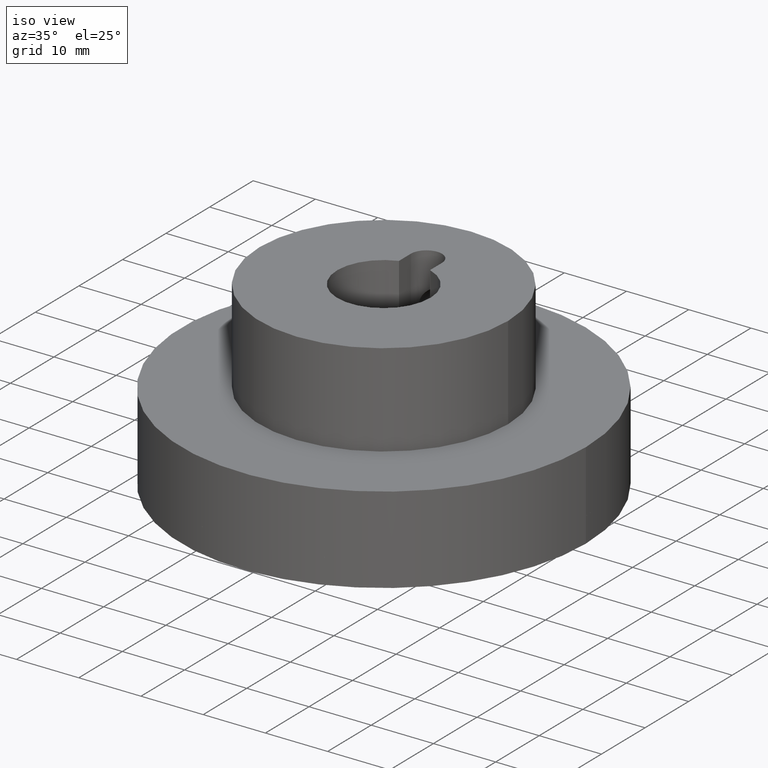
[diagram: clean part render]
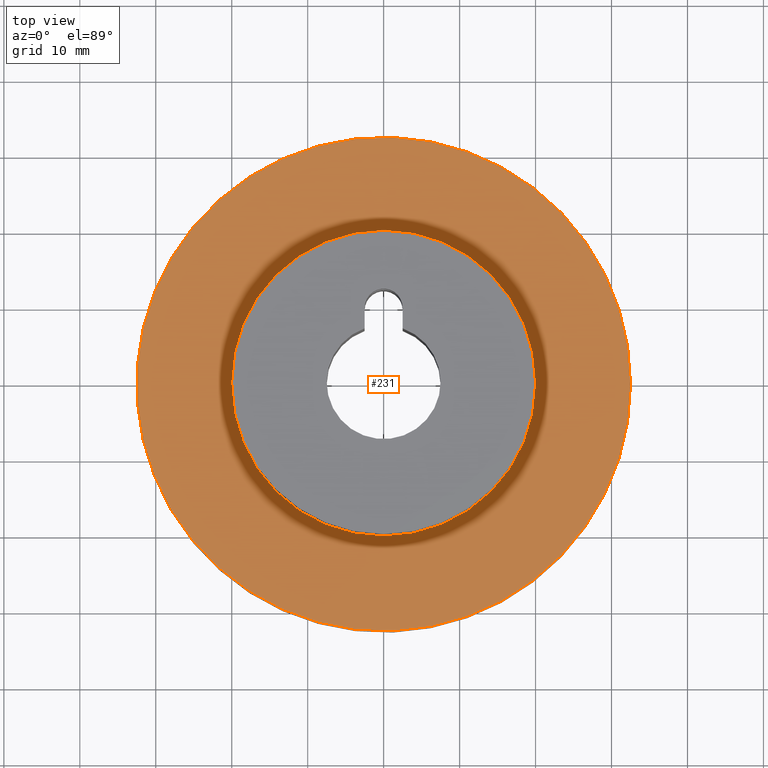
[diagram: tour spotlight — one face highlighted and labeled with its STEP entity id]
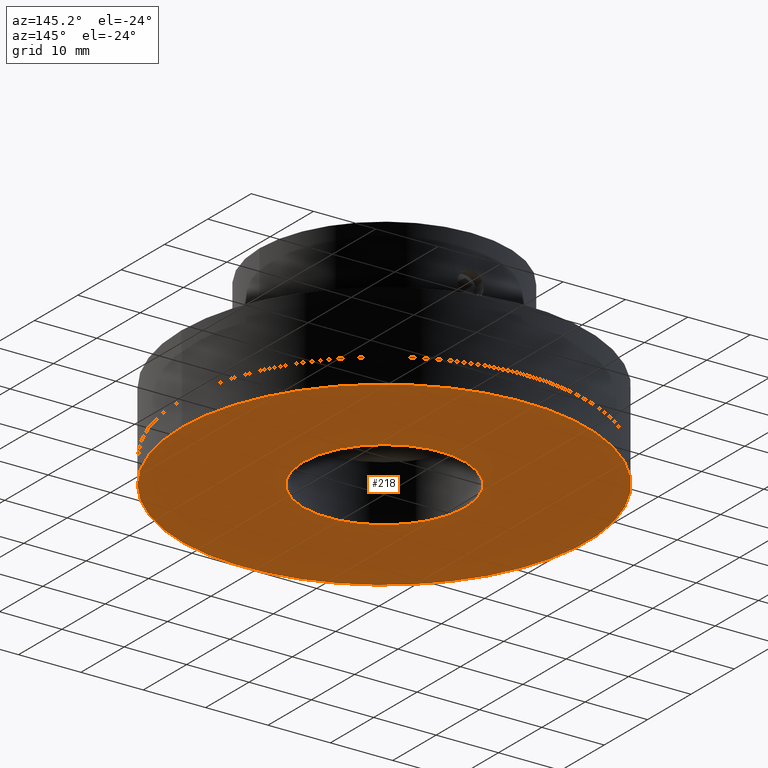
[diagram: tour spotlight — one face highlighted and labeled with its STEP entity id]
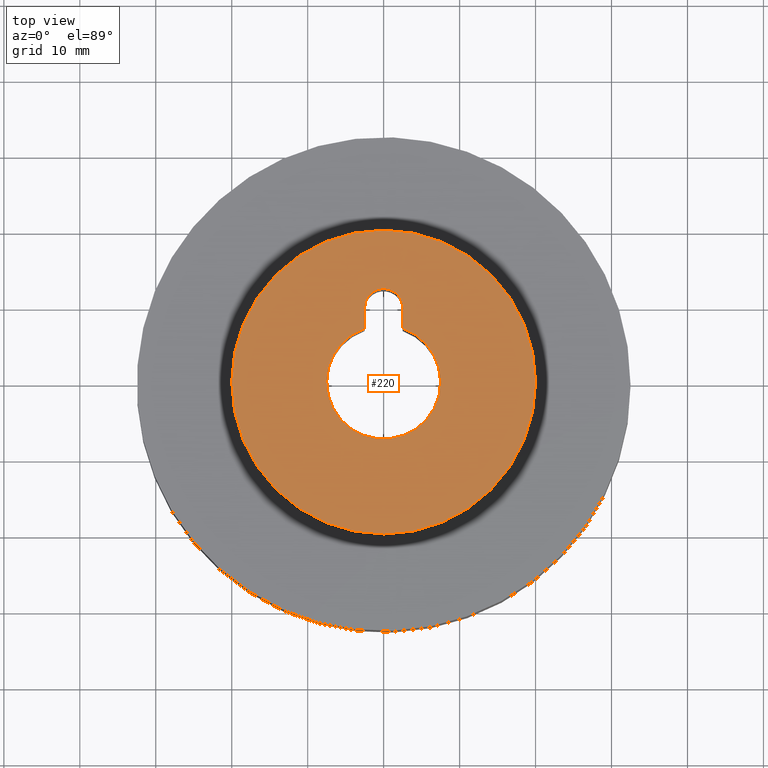
[diagram: tour spotlight — one face highlighted and labeled with its STEP entity id]
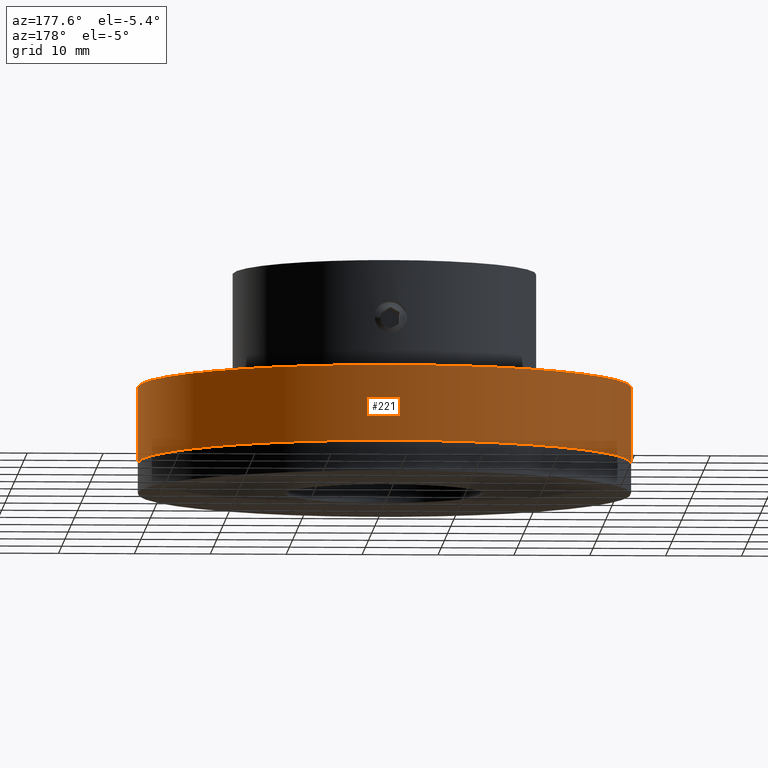
[diagram: tour spotlight — one face highlighted and labeled with its STEP entity id]
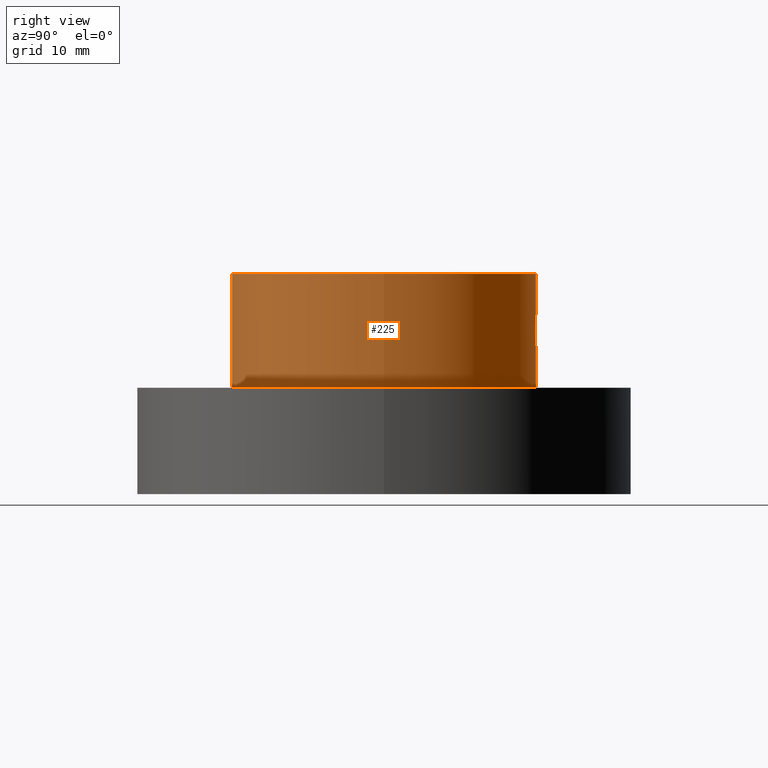
[diagram: tour spotlight — one face highlighted and labeled with its STEP entity id]
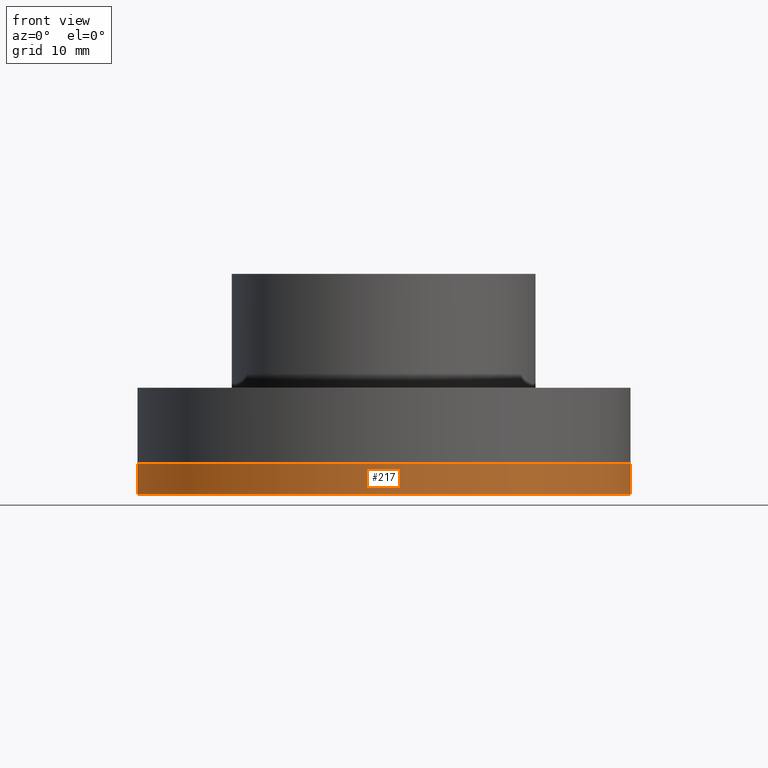
[diagram: tour spotlight — one face highlighted and labeled with its STEP entity id]
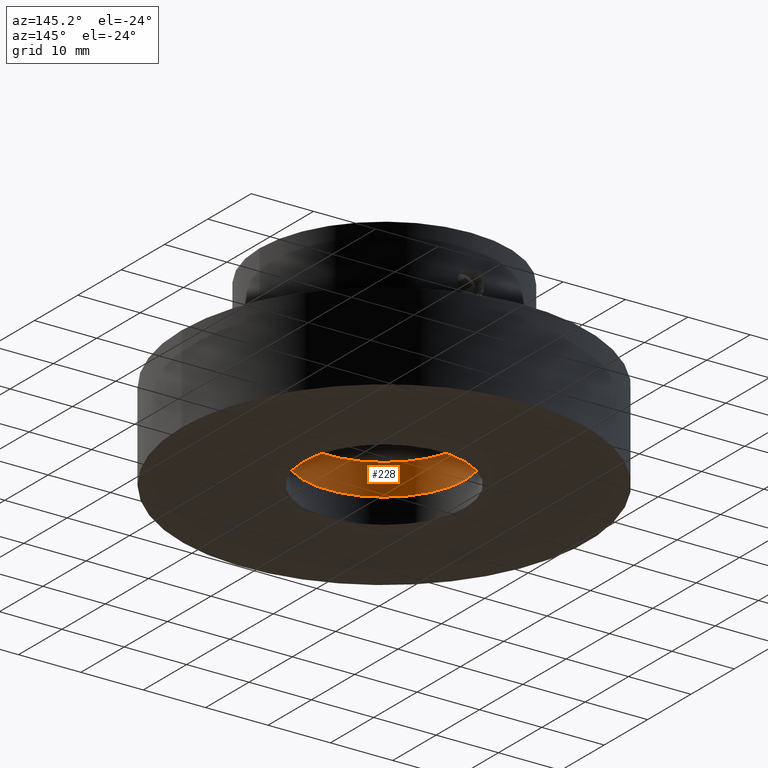
[diagram: tour spotlight — one face highlighted and labeled with its STEP entity id]
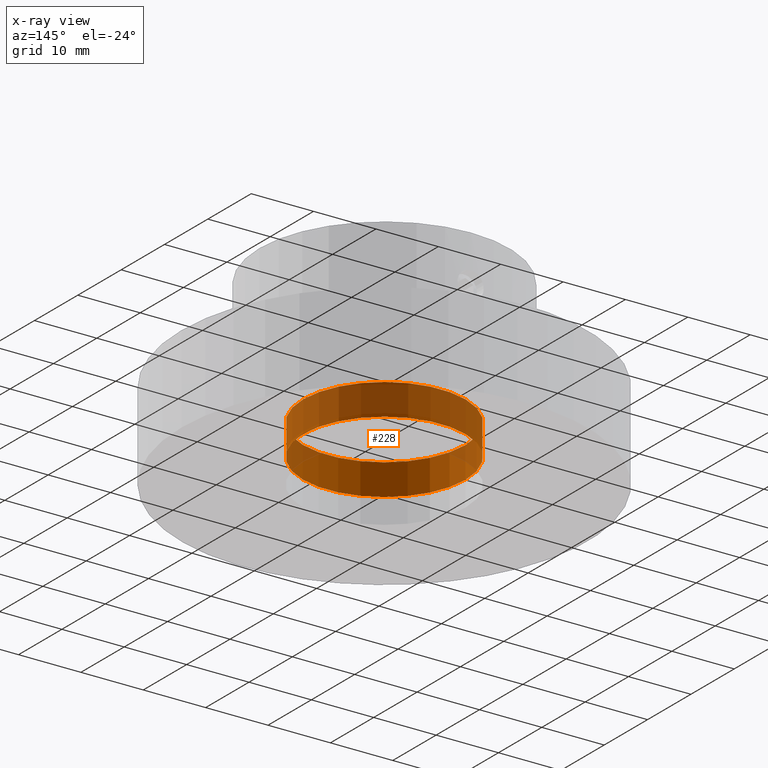
[diagram: x-ray of the same camera — body ghosted, this tour face saturated]
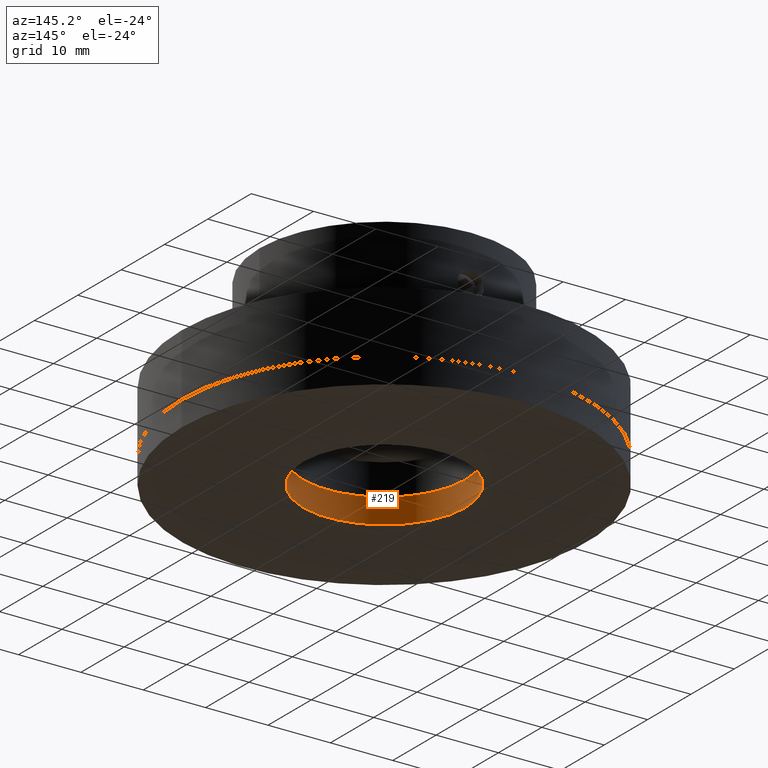
[diagram: tour spotlight — one face highlighted and labeled with its STEP entity id]
A machine part: a face-by-face anatomy tour. The part has 38 B-rep faces; the first image is the clean iso view, then the 8 largest visible faces are spotlighted one at a time (largest first), each with its STEP entity span.

Face 1 — top view, entity #231. In plain terms, the highlighted planar face has unit normal (0, 0, 1).
Definition (entity closure, byte-faithful):
#231 = ADVANCED_FACE( '', ( #290, #291 ), #292, .T. );
#290 = FACE_BOUND( '', #362, .T. );
#291 = FACE_OUTER_BOUND( '', #363, .T. );
#292 = PLANE( '', #364 );
#362 = EDGE_LOOP( '', ( #482 ) );
#363 = EDGE_LOOP( '', ( #483 ) );
#364 = AXIS2_PLACEMENT_3D( '', #484, #485, #486 );
#482 = ORIENTED_EDGE( '', *, *, #582, .F. );
#483 = ORIENTED_EDGE( '', *, *, #572, .T. );
#484 = CARTESIAN_POINT( '', ( 0.000000000000000, 0.000000000000000, 14.0000000000000 ) );
#485 = DIRECTION( '', ( 0.000000000000000, 0.000000000000000, 1.00000000000000 ) );
#486 = DIRECTION( '', ( 1.00000000000000, 0.000000000000000, 0.000000000000000 ) );
#572 = EDGE_CURVE( '', #627, #627, #628, .T. );
#582 = EDGE_CURVE( '', #644, #644, #645, .T. );
#627 = VERTEX_POINT( '', #709 );
#628 = CIRCLE( '', #710, 32.5000000000000 );
#644 = VERTEX_POINT( '', #785 );
#645 = CIRCLE( '', #786, 20.0000000000000 );
#709 = CARTESIAN_POINT( '', ( 32.5000000000000, 0.000000000000000, 14.0000000000000 ) );
#710 = AXIS2_PLACEMENT_3D( '', #956, #957, #958 );
#785 = CARTESIAN_POINT( '', ( 20.0000000000000, 0.000000000000000, 14.0000000000000 ) );
#786 = AXIS2_PLACEMENT_3D( '', #971, #972, #973 );
#956 = CARTESIAN_POINT( '', ( 0.000000000000000, 0.000000000000000, 14.0000000000000 ) );
#957 = DIRECTION( '', ( 0.000000000000000, 0.000000000000000, 1.00000000000000 ) );
#958 = DIRECTION( '', ( 1.00000000000000, 0.000000000000000, 0.000000000000000 ) );
#971 = CARTESIAN_POINT( '', ( 0.000000000000000, 0.000000000000000, 14.0000000000000 ) );
#972 = DIRECTION( '', ( 0.000000000000000, 0.000000000000000, 1.00000000000000 ) );
#973 = DIRECTION( '', ( 1.00000000000000, 0.000000000000000, 0.000000000000000 ) );

Face 2 — auxiliary view, entity #218. In plain terms, the highlighted planar face has unit normal (0, 0, 1).
Definition (entity closure, byte-faithful):
#218 = ADVANCED_FACE( '', ( #253, #254 ), #255, .F. );
#253 = FACE_BOUND( '', #325, .T. );
#254 = FACE_OUTER_BOUND( '', #326, .T. );
#255 = PLANE( '', #327 );
#325 = EDGE_LOOP( '', ( #401 ) );
#326 = EDGE_LOOP( '', ( #402 ) );
#327 = AXIS2_PLACEMENT_3D( '', #403, #404, #405 );
#401 = ORIENTED_EDGE( '', *, *, #566, .T. );
#402 = ORIENTED_EDGE( '', *, *, #565, .F. );
#403 = CARTESIAN_POINT( '', ( 0.000000000000000, 0.000000000000000, 0.000000000000000 ) );
#404 = DIRECTION( '', ( 0.000000000000000, 0.000000000000000, 1.00000000000000 ) );
#405 = DIRECTION( '', ( 1.00000000000000, 0.000000000000000, 0.000000000000000 ) );
#565 = EDGE_CURVE( '', #613, #613, #614, .T. );
#566 = EDGE_CURVE( '', #615, #615, #616, .T. );
#613 = VERTEX_POINT( '', #693 );
#614 = CIRCLE( '', #694, 32.5000000000000 );
#615 = VERTEX_POINT( '', #695 );
#616 = CIRCLE( '', #696, 13.0000000000000 );
#693 = CARTESIAN_POINT( '', ( 32.5000000000000, 0.000000000000000, 0.000000000000000 ) );
#694 = AXIS2_PLACEMENT_3D( '', #939, #940, #941 );
#695 = CARTESIAN_POINT( '', ( 13.0000000000000, 0.000000000000000, 0.000000000000000 ) );
#696 = AXIS2_PLACEMENT_3D( '', #942, #943, #944 );
#939 = CARTESIAN_POINT( '', ( 0.000000000000000, 0.000000000000000, 0.000000000000000 ) );
#940 = DIRECTION( '', ( 0.000000000000000, 0.000000000000000, 1.00000000000000 ) );
#941 = DIRECTION( '', ( 1.00000000000000, 0.000000000000000, 0.000000000000000 ) );
#942 = CARTESIAN_POINT( '', ( 3.46944695195361E-015, 0.000000000000000, 0.000000000000000 ) );
#943 = DIRECTION( '', ( 0.000000000000000, 0.000000000000000, 1.00000000000000 ) );
#944 = DIRECTION( '', ( 1.00000000000000, 0.000000000000000, 0.000000000000000 ) );

Face 3 — top view, entity #220. In plain terms, the highlighted planar face has unit normal (0, 0, 1).
Definition (entity closure, byte-faithful):
#220 = ADVANCED_FACE( '', ( #259, #260 ), #261, .T. );
#259 = FACE_OUTER_BOUND( '', #331, .T. );
#260 = FACE_BOUND( '', #332, .T. );
#261 = PLANE( '', #333 );
#331 = EDGE_LOOP( '', ( #411 ) );
#332 = EDGE_LOOP( '', ( #412, #413, #414, #415 ) );
#333 = AXIS2_PLACEMENT_3D( '', #416, #417, #418 );
#411 = ORIENTED_EDGE( '', *, *, #567, .T. );
#412 = ORIENTED_EDGE( '', *, *, #568, .T. );
#413 = ORIENTED_EDGE( '', *, *, #569, .T. );
#414 = ORIENTED_EDGE( '', *, *, #570, .T. );
#415 = ORIENTED_EDGE( '', *, *, #571, .T. );
#416 = CARTESIAN_POINT( '', ( 0.000000000000000, 0.000000000000000, 29.0000000000000 ) );
#417 = DIRECTION( '', ( 0.000000000000000, 0.000000000000000, 1.00000000000000 ) );
#418 = DIRECTION( '', ( 1.00000000000000, 0.000000000000000, 0.000000000000000 ) );
#567 = EDGE_CURVE( '', #617, #617, #618, .T. );
#568 = EDGE_CURVE( '', #619, #620, #621, .T. );
#569 = EDGE_CURVE( '', #620, #622, #623, .F. );
#570 = EDGE_CURVE( '', #622, #624, #625, .T. );
#571 = EDGE_CURVE( '', #624, #619, #626, .F. );
#617 = VERTEX_POINT( '', #697 );
#618 = CIRCLE( '', #698, 20.0000000000000 );
#619 = VERTEX_POINT( '', #699 );
#620 = VERTEX_POINT( '', #700 );
#621 = LINE( '', #701, #702 );
#622 = VERTEX_POINT( '', #703 );
#623 = CIRCLE( '', #704, 2.50000000000000 );
#624 = VERTEX_POINT( '', #705 );
#625 = LINE( '', #706, #707 );
#626 = CIRCLE( '', #708, 7.50000000000000 );
#697 = CARTESIAN_POINT( '', ( 20.0000000000000, 0.000000000000000, 29.0000000000000 ) );
#698 = AXIS2_PLACEMENT_3D( '', #945, #946, #947 );
#699 = CARTESIAN_POINT( '', ( -2.50000000000001, 7.07106781186547, 29.0000000000000 ) );
#700 = CARTESIAN_POINT( '', ( -2.50000000000000, 9.80000000000000, 29.0000000000000 ) );
#701 = CARTESIAN_POINT( '', ( -2.50000000000000, 1.53075794227797E-016, 29.0000000000000 ) );
#702 = VECTOR( '', #948, 1000.00000000000 );
#703 = CARTESIAN_POINT( '', ( 2.50000000000000, 9.80000000000000, 29.0000000000000 ) );
#704 = AXIS2_PLACEMENT_3D( '', #949, #950, #951 );
#705 = CARTESIAN_POINT( '', ( 2.50000000000000, 7.07106781186548, 29.0000000000000 ) );
#706 = CARTESIAN_POINT( '', ( 2.50000000000000, -1.53075794227797E-016, 29.0000000000000 ) );
#707 = VECTOR( '', #952, 1000.00000000000 );
#708 = AXIS2_PLACEMENT_3D( '', #953, #954, #955 );
#945 = CARTESIAN_POINT( '', ( 0.000000000000000, 0.000000000000000, 29.0000000000000 ) );
#946 = DIRECTION( '', ( 0.000000000000000, 0.000000000000000, 1.00000000000000 ) );
#947 = DIRECTION( '', ( 1.00000000000000, 0.000000000000000, 0.000000000000000 ) );
#948 = DIRECTION( '', ( 6.12303176911189E-017, 1.00000000000000, -0.000000000000000 ) );
#949 = CARTESIAN_POINT( '', ( 0.000000000000000, 9.80000000000000, 29.0000000000000 ) );
#950 = DIRECTION( '', ( 0.000000000000000, 0.000000000000000, 1.00000000000000 ) );
#951 = DIRECTION( '', ( 1.00000000000000, 0.000000000000000, -0.000000000000000 ) );
#952 = DIRECTION( '', ( -6.12303176911189E-017, -1.00000000000000, 0.000000000000000 ) );
#953 = CARTESIAN_POINT( '', ( 0.000000000000000, 0.000000000000000, 29.0000000000000 ) );
#954 = DIRECTION( '', ( 0.000000000000000, 0.000000000000000, 1.00000000000000 ) );
#955 = DIRECTION( '', ( 1.00000000000000, 0.000000000000000, -0.000000000000000 ) );

Face 4 — auxiliary view, entity #221. In plain terms, the highlighted cylindrical surface (bore or boss wall) has radius 32.5 mm, axis along (0, -0, 1).
Definition (entity closure, byte-faithful):
#221 = ADVANCED_FACE( '', ( #262, #263 ), #264, .T. );
#262 = FACE_OUTER_BOUND( '', #334, .T. );
#263 = FACE_OUTER_BOUND( '', #335, .T. );
#264 = CYLINDRICAL_SURFACE( '', #336, 32.5000000000000 );
#334 = EDGE_LOOP( '', ( #419 ) );
#335 = EDGE_LOOP( '', ( #420 ) );
#336 = AXIS2_PLACEMENT_3D( '', #421, #422, #423 );
#419 = ORIENTED_EDGE( '', *, *, #572, .F. );
#420 = ORIENTED_EDGE( '', *, *, #573, .T. );
#421 = CARTESIAN_POINT( '', ( 0.000000000000000, 0.000000000000000, 14.0000000000000 ) );
#422 = DIRECTION( '', ( 0.000000000000000, -0.000000000000000, 1.00000000000000 ) );
#423 = DIRECTION( '', ( -1.00000000000000, 0.000000000000000, 0.000000000000000 ) );
#572 = EDGE_CURVE( '', #627, #627, #628, .T. );
#573 = EDGE_CURVE( '', #629, #629, #630, .T. );
#627 = VERTEX_POINT( '', #709 );
#628 = CIRCLE( '', #710, 32.5000000000000 );
#629 = VERTEX_POINT( '', #711 );
#630 = CIRCLE( '', #712, 32.5000000000000 );
#709 = CARTESIAN_POINT( '', ( 32.5000000000000, 0.000000000000000, 14.0000000000000 ) );
#710 = AXIS2_PLACEMENT_3D( '', #956, #957, #958 );
#711 = CARTESIAN_POINT( '', ( 32.5000000000000, 0.000000000000000, 4.00000000000000 ) );
#712 = AXIS2_PLACEMENT_3D( '', #959, #960, #961 );
#956 = CARTESIAN_POINT( '', ( 0.000000000000000, 0.000000000000000, 14.0000000000000 ) );
#957 = DIRECTION( '', ( 0.000000000000000, 0.000000000000000, 1.00000000000000 ) );
#958 = DIRECTION( '', ( 1.00000000000000, 0.000000000000000, 0.000000000000000 ) );
#959 = CARTESIAN_POINT( '', ( 0.000000000000000, 0.000000000000000, 4.00000000000000 ) );
#960 = DIRECTION( '', ( 0.000000000000000, 0.000000000000000, 1.00000000000000 ) );
#961 = DIRECTION( '', ( 1.00000000000000, 0.000000000000000, 0.000000000000000 ) );

Face 5 — right view, entity #225. In plain terms, the highlighted cylindrical surface (bore or boss wall) has radius 20 mm, axis along (0, -0, 1).
Definition (entity closure, byte-faithful):
#225 = ADVANCED_FACE( '', ( #271, #272, #273 ), #274, .T. );
#271 = FACE_BOUND( '', #343, .T. );
#272 = FACE_OUTER_BOUND( '', #344, .T. );
#273 = FACE_OUTER_BOUND( '', #345, .T. );
#274 = CYLINDRICAL_SURFACE( '', #346, 20.0000000000000 );
#343 = EDGE_LOOP( '', ( #445 ) );
#344 = EDGE_LOOP( '', ( #446 ) );
#345 = EDGE_LOOP( '', ( #447 ) );
#346 = AXIS2_PLACEMENT_3D( '', #448, #449, #450 );
#445 = ORIENTED_EDGE( '', *, *, #581, .T. );
#446 = ORIENTED_EDGE( '', *, *, #567, .F. );
#447 = ORIENTED_EDGE( '', *, *, #582, .T. );
#448 = CARTESIAN_POINT( '', ( 0.000000000000000, 0.000000000000000, 29.0000000000000 ) );
#449 = DIRECTION( '', ( 0.000000000000000, -0.000000000000000, 1.00000000000000 ) );
#450 = DIRECTION( '', ( -1.00000000000000, 0.000000000000000, 0.000000000000000 ) );
#567 = EDGE_CURVE( '', #617, #617, #618, .T. );
#581 = EDGE_CURVE( '', #642, #642, #643, .T. );
#582 = EDGE_CURVE( '', #644, #644, #645, .T. );
#617 = VERTEX_POINT( '', #697 );
#618 = CIRCLE( '', #698, 20.0000000000000 );
#642 = VERTEX_POINT( '', #730 );
#643 = B_SPLINE_CURVE_WITH_KNOTS( '', 3, ( #731, #732, #733, #734, #735, #736, #737, #738, #739, #740, #741, #742, #743, #744, #745, #746, #747, #748, #749, #750, #751, #752, #753, #754, #755, #756, #757, #758, #759, #760, #761, #762, #763, #764, #765, #766, #767, #768, #769, #770, #771, #772, #773, #774, #775, #776, #777, #778, #779, #780, #781, #782, #783, #784 ), .UNSPECIFIED., .T., .F., ( 2, 2, 2, 2, 2, 2, 2, 2, 2, 2, 2, 2, 2, 2, 2, 2, 2, 2, 2, 2, 2, 2, 2, 2, 2, 2, 2, 2, 2 ), ( -0.000821163446587745, 0.000000000000000, 0.000410581723293875, 0.000821163446587749, 0.00123174516988162, 0.00164232689317550, 0.00246349033976325, 0.00328465378635100, 0.00369523550964487, 0.00410581723293875, 0.00451639895623262, 0.00492698067952650, 0.00533756240282037, 0.00574814412611425, 0.00615872584940812, 0.00656930757270200, 0.00739047101928974, 0.00821163446587747, 0.00862221618917135, 0.00903279791246522, 0.00944337963575909, 0.00985396135905297, 0.0102645430823468, 0.0106751248056407, 0.0110857065289346, 0.0114962882522285, 0.0123174516988162, 0.0131386151454040, 0.0135491968686978 ), .UNSPECIFIED. );
#644 = VERTEX_POINT( '', #785 );
#645 = CIRCLE( '', #786, 20.0000000000000 );
#697 = CARTESIAN_POINT( '', ( 20.0000000000000, 0.000000000000000, 29.0000000000000 ) );
#698 = AXIS2_PLACEMENT_3D( '', #945, #946, #947 );
#730 = CARTESIAN_POINT( '', ( -2.10000000000000, 19.8894444366855, 21.5000000000000 ) );
#731 = CARTESIAN_POINT( '', ( -2.10000000000000, 19.8894444366855, 21.7776771849484 ) );
#732 = CARTESIAN_POINT( '', ( -2.10000000000000, 19.8894444366855, 21.3611614075258 ) );
#733 = CARTESIAN_POINT( '', ( -2.08636700651663, 19.8908972450046, 21.2246621609851 ) );
#734 = CARTESIAN_POINT( '', ( -2.03296828274487, 19.8964258212013, 20.9561450810851 ) );
#735 = CARTESIAN_POINT( '', ( -1.99254751251045, 19.9005668289923, 20.8227286617630 ) );
#736 = CARTESIAN_POINT( '', ( -1.88710917802257, 19.9108418871484, 20.5684630949705 ) );
#737 = CARTESIAN_POINT( '', ( -1.82260119526382, 19.9169268485839, 20.4478833145189 ) );
#738 = CARTESIAN_POINT( '', ( -1.67021219422513, 19.9302845297071, 20.2196813431390 ) );
#739 = CARTESIAN_POINT( '', ( -1.58157614723022, 19.9376036563726, 20.1117080419054 ) );
#740 = CARTESIAN_POINT( '', ( -1.29116845871562, 19.9592227975836, 19.8213592722655 ) );
#741 = CARTESIAN_POINT( '', ( -1.05703255291418, 19.9736480165375, 19.6649285784720 ) );
#742 = CARTESIAN_POINT( '', ( -0.551742581960600, 19.9939869218149, 19.4554010018391 ) );
#743 = CARTESIAN_POINT( '', ( -0.275265372064455, 19.9999841916405, 19.4001505558275 ) );
#744 = CARTESIAN_POINT( '', ( 0.135906190697198, 20.0000078545000, 19.3999251952270 ) );
#745 = CARTESIAN_POINT( '', ( 0.275134808803890, 19.9985612639562, 19.4135764019416 ) );
#746 = CARTESIAN_POINT( '', ( 0.544535395807608, 19.9930396136740, 19.4671832851279 ) );
#747 = CARTESIAN_POINT( '', ( 0.675485208301388, 19.9889949963069, 19.5068461542688 ) );
#748 = CARTESIAN_POINT( '', ( 0.929848208336215, 19.9787783294793, 19.6120580441017 ) );
#749 = CARTESIAN_POINT( '', ( 1.05270242619260, 19.9726011484182, 19.6777695921894 ) );
#750 = CARTESIAN_POINT( '', ( 1.28016569581092, 19.9593124837299, 19.8297060592427 ) );
#751 = CARTESIAN_POINT( '', ( 1.38622716835049, 19.9521438664748, 19.9164619690637 ) );
#752 = CARTESIAN_POINT( '', ( 1.58236351455577, 19.9375474002843, 20.1124322843561 ) );
#753 = CARTESIAN_POINT( '', ( 1.66919311303885, 19.9303693672166, 20.2184015635781 ) );
#754 = CARTESIAN_POINT( '', ( 1.82130330811542, 19.9170450374083, 20.4456971684079 ) );
#755 = CARTESIAN_POINT( '', ( 1.88711212514930, 19.9108416166091, 20.5684674184593 ) );
#756 = CARTESIAN_POINT( '', ( 1.99255702856719, 19.9005658849814, 20.8227543936910 ) );
#757 = CARTESIAN_POINT( '', ( 2.03232519592884, 19.8964918151816, 20.9536473725528 ) );
#758 = CARTESIAN_POINT( '', ( 2.08615793075595, 19.8909194694850, 21.2228863347474 ) );
#759 = CARTESIAN_POINT( '', ( 2.09994926683242, 19.8894497932778, 21.3621345517398 ) );
#760 = CARTESIAN_POINT( '', ( 2.10010103736386, 19.8894337687933, 21.7734060226828 ) );
#761 = CARTESIAN_POINT( '', ( 2.04511040547797, 19.8954407050881, 22.0498745026592 ) );
#762 = CARTESIAN_POINT( '', ( 1.83598354816332, 19.9158279223120, 22.5554633817156 ) );
#763 = CARTESIAN_POINT( '', ( 1.67975986150077, 19.9302790061295, 22.7897148542924 ) );
#764 = CARTESIAN_POINT( '', ( 1.38964766186881, 19.9518992326415, 23.0803856413184 ) );
#765 = CARTESIAN_POINT( '', ( 1.28174506758662, 19.9592128020052, 23.1691167372387 ) );
#766 = CARTESIAN_POINT( '', ( 1.05369576745496, 19.9725504461413, 23.3216877697511 ) );
#767 = CARTESIAN_POINT( '', ( 0.933191970037338, 19.9786216165792, 23.3862887746121 ) );
#768 = CARTESIAN_POINT( '', ( 0.679084256237533, 19.9888722424332, 23.4919280024891 ) );
#769 = CARTESIAN_POINT( '', ( 0.545661189400153, 19.9930057614698, 23.5324839387912 ) );
#770 = CARTESIAN_POINT( '', ( 0.277199768626403, 19.9985295909489, 23.5861201747108 ) );
#771 = CARTESIAN_POINT( '', ( 0.140748090686117, 19.9999861564342, 23.5998681564585 ) );
#772 = CARTESIAN_POINT( '', ( -0.136785924546640, 20.0000136473313, 23.6001299746411 ) );
#773 = CARTESIAN_POINT( '', ( -0.273470454792159, 19.9985812511769, 23.5866123160923 ) );
#774 = CARTESIAN_POINT( '', ( -0.542026981858889, 19.9931049339643, 23.5334561215451 ) );
#775 = CARTESIAN_POINT( '', ( -0.675421392537235, 19.9889974014788, 23.4931783389943 ) );
#776 = CARTESIAN_POINT( '', ( -0.929862461120041, 19.9787779150082, 23.3879379629461 ) );
#777 = CARTESIAN_POINT( '', ( -1.05050697381952, 19.9727191453473, 23.3235279183662 ) );
#778 = CARTESIAN_POINT( '', ( -1.27881048052864, 19.9594017624741, 23.1713655273441 ) );
#779 = CARTESIAN_POINT( '', ( -1.38687808745297, 19.9520927963513, 23.0828175628248 ) );
#780 = CARTESIAN_POINT( '', ( -1.67751971521281, 19.9304711118366, 22.7926316844514 ) );
#781 = CARTESIAN_POINT( '', ( -1.83413694126365, 19.9160003139216, 22.5586530858035 ) );
#782 = CARTESIAN_POINT( '', ( -2.04411051774113, 19.8955457078888, 22.0535493353345 ) );
#783 = CARTESIAN_POINT( '', ( -2.10000000000000, 19.8894444366855, 21.7776771849484 ) );
#784 = CARTESIAN_POINT( '', ( -2.10000000000000, 19.8894444366855, 21.3611614075258 ) );
#785 = CARTESIAN_POINT( '', ( 20.0000000000000, 0.000000000000000, 14.0000000000000 ) );
#786 = AXIS2_PLACEMENT_3D( '', #971, #972, #973 );
#945 = CARTESIAN_POINT( '', ( 0.000000000000000, 0.000000000000000, 29.0000000000000 ) );
#946 = DIRECTION( '', ( 0.000000000000000, 0.000000000000000, 1.00000000000000 ) );
#947 = DIRECTION( '', ( 1.00000000000000, 0.000000000000000, 0.000000000000000 ) );
#971 = CARTESIAN_POINT( '', ( 0.000000000000000, 0.000000000000000, 14.0000000000000 ) );
#972 = DIRECTION( '', ( 0.000000000000000, 0.000000000000000, 1.00000000000000 ) );
#973 = DIRECTION( '', ( 1.00000000000000, 0.000000000000000, 0.000000000000000 ) );

Face 6 — front view, entity #217. In plain terms, the highlighted cylindrical surface (bore or boss wall) has radius 32.5 mm, axis along (0, -0, 1).
Definition (entity closure, byte-faithful):
#217 = ADVANCED_FACE( '', ( #250, #251 ), #252, .T. );
#250 = FACE_OUTER_BOUND( '', #322, .T. );
#251 = FACE_OUTER_BOUND( '', #323, .T. );
#252 = CYLINDRICAL_SURFACE( '', #324, 32.5000000000000 );
#322 = EDGE_LOOP( '', ( #396 ) );
#323 = EDGE_LOOP( '', ( #397 ) );
#324 = AXIS2_PLACEMENT_3D( '', #398, #399, #400 );
#396 = ORIENTED_EDGE( '', *, *, #563, .F. );
#397 = ORIENTED_EDGE( '', *, *, #565, .T. );
#398 = CARTESIAN_POINT( '', ( 0.000000000000000, 0.000000000000000, 4.00000000000000 ) );
#399 = DIRECTION( '', ( 0.000000000000000, -0.000000000000000, 1.00000000000000 ) );
#400 = DIRECTION( '', ( -1.00000000000000, 0.000000000000000, 0.000000000000000 ) );
#563 = EDGE_CURVE( '', #609, #609, #610, .T. );
#565 = EDGE_CURVE( '', #613, #613, #614, .T. );
#609 = VERTEX_POINT( '', #689 );
#610 = CIRCLE( '', #690, 32.5000000000000 );
#613 = VERTEX_POINT( '', #693 );
#614 = CIRCLE( '', #694, 32.5000000000000 );
#689 = CARTESIAN_POINT( '', ( 32.5000000000000, 0.000000000000000, 4.00000000000000 ) );
#690 = AXIS2_PLACEMENT_3D( '', #933, #934, #935 );
#693 = CARTESIAN_POINT( '', ( 32.5000000000000, 0.000000000000000, 0.000000000000000 ) );
#694 = AXIS2_PLACEMENT_3D( '', #939, #940, #941 );
#933 = CARTESIAN_POINT( '', ( 0.000000000000000, 0.000000000000000, 4.00000000000000 ) );
#934 = DIRECTION( '', ( 0.000000000000000, 0.000000000000000, 1.00000000000000 ) );
#935 = DIRECTION( '', ( 1.00000000000000, 0.000000000000000, 0.000000000000000 ) );
#939 = CARTESIAN_POINT( '', ( 0.000000000000000, 0.000000000000000, 0.000000000000000 ) );
#940 = DIRECTION( '', ( 0.000000000000000, 0.000000000000000, 1.00000000000000 ) );
#941 = DIRECTION( '', ( 1.00000000000000, 0.000000000000000, 0.000000000000000 ) );

Face 7 — auxiliary view, entity #228. An x-ray twin of the same camera follows (body ghosted, this face saturated) — the face is partly hidden behind the body. In plain terms, the highlighted cylindrical surface (bore or boss wall) has radius 13 mm, axis along (0, -0, 1).
Definition (entity closure, byte-faithful):
#228 = ADVANCED_FACE( '', ( #281, #282 ), #283, .F. );
#281 = FACE_OUTER_BOUND( '', #353, .T. );
#282 = FACE_OUTER_BOUND( '', #354, .T. );
#283 = CYLINDRICAL_SURFACE( '', #355, 13.0000000000000 );
#353 = EDGE_LOOP( '', ( #464 ) );
#354 = EDGE_LOOP( '', ( #465 ) );
#355 = AXIS2_PLACEMENT_3D( '', #466, #467, #468 );
#464 = ORIENTED_EDGE( '', *, *, #585, .T. );
#465 = ORIENTED_EDGE( '', *, *, #586, .T. );
#466 = CARTESIAN_POINT( '', ( 3.46944695195361E-015, 0.000000000000000, 9.00000000000000 ) );
#467 = DIRECTION( '', ( 0.000000000000000, -0.000000000000000, 1.00000000000000 ) );
#468 = DIRECTION( '', ( -1.00000000000000, 0.000000000000000, 0.000000000000000 ) );
#585 = EDGE_CURVE( '', #649, #649, #650, .T. );
#586 = EDGE_CURVE( '', #651, #651, #652, .F. );
#649 = VERTEX_POINT( '', #851 );
#650 = CIRCLE( '', #852, 13.0000000000000 );
#651 = VERTEX_POINT( '', #853 );
#652 = CIRCLE( '', #854, 13.0000000000000 );
#851 = CARTESIAN_POINT( '', ( 13.0000000000000, 0.000000000000000, 9.00000000000000 ) );
#852 = AXIS2_PLACEMENT_3D( '', #977, #978, #979 );
#853 = CARTESIAN_POINT( '', ( 13.0000000000000, 0.000000000000000, 4.00000000000000 ) );
#854 = AXIS2_PLACEMENT_3D( '', #980, #981, #982 );
#977 = CARTESIAN_POINT( '', ( 3.46944695195361E-015, 0.000000000000000, 9.00000000000000 ) );
#978 = DIRECTION( '', ( 0.000000000000000, 0.000000000000000, 1.00000000000000 ) );
#979 = DIRECTION( '', ( 1.00000000000000, 0.000000000000000, 0.000000000000000 ) );
#980 = CARTESIAN_POINT( '', ( 3.46944695195361E-015, 0.000000000000000, 4.00000000000000 ) );
#981 = DIRECTION( '', ( 0.000000000000000, 0.000000000000000, 1.00000000000000 ) );
#982 = DIRECTION( '', ( 1.00000000000000, 0.000000000000000, -0.000000000000000 ) );

Face 8 — auxiliary view, entity #219. In plain terms, the highlighted cylindrical surface (bore or boss wall) has radius 13 mm, axis along (0, -0, 1).
Definition (entity closure, byte-faithful):
#219 = ADVANCED_FACE( '', ( #256, #257 ), #258, .F. );
#256 = FACE_OUTER_BOUND( '', #328, .T. );
#257 = FACE_OUTER_BOUND( '', #329, .T. );
#258 = CYLINDRICAL_SURFACE( '', #330, 13.0000000000000 );
#328 = EDGE_LOOP( '', ( #406 ) );
#329 = EDGE_LOOP( '', ( #407 ) );
#330 = AXIS2_PLACEMENT_3D( '', #408, #409, #410 );
#406 = ORIENTED_EDGE( '', *, *, #564, .F. );
#407 = ORIENTED_EDGE( '', *, *, #566, .F. );
#408 = CARTESIAN_POINT( '', ( 3.46944695195361E-015, 0.000000000000000, 9.00000000000000 ) );
#409 = DIRECTION( '', ( 0.000000000000000, -0.000000000000000, 1.00000000000000 ) );
#410 = DIRECTION( '', ( -1.00000000000000, 0.000000000000000, 0.000000000000000 ) );
#564 = EDGE_CURVE( '', #611, #611, #612, .F. );
#566 = EDGE_CURVE( '', #615, #615, #616, .T. );
#611 = VERTEX_POINT( '', #691 );
#612 = CIRCLE( '', #692, 13.0000000000000 );
#615 = VERTEX_POINT( '', #695 );
#616 = CIRCLE( '', #696, 13.0000000000000 );
#691 = CARTESIAN_POINT( '', ( 13.0000000000000, 0.000000000000000, 4.00000000000000 ) );
#692 = AXIS2_PLACEMENT_3D( '', #936, #937, #938 );
#695 = CARTESIAN_POINT( '', ( 13.0000000000000, 0.000000000000000, 0.000000000000000 ) );
#696 = AXIS2_PLACEMENT_3D( '', #942, #943, #944 );
#936 = CARTESIAN_POINT( '', ( 3.46944695195361E-015, 0.000000000000000, 4.00000000000000 ) );
#937 = DIRECTION( '', ( 0.000000000000000, 0.000000000000000, 1.00000000000000 ) );
#938 = DIRECTION( '', ( 1.00000000000000, 0.000000000000000, -0.000000000000000 ) );
#942 = CARTESIAN_POINT( '', ( 3.46944695195361E-015, 0.000000000000000, 0.000000000000000 ) );
#943 = DIRECTION( '', ( 0.000000000000000, 0.000000000000000, 1.00000000000000 ) );
#944 = DIRECTION( '', ( 1.00000000000000, 0.000000000000000, 0.000000000000000 ) );